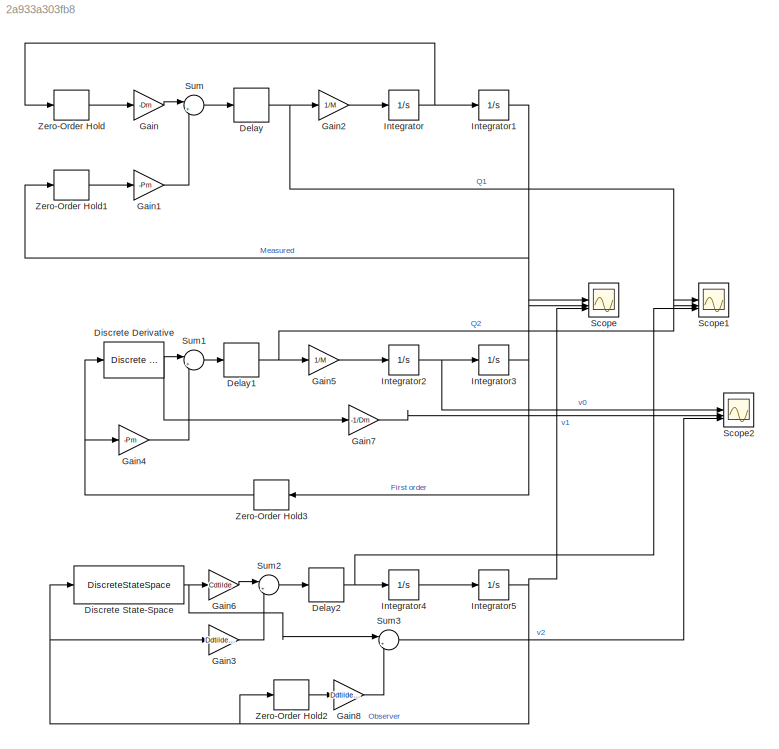
MODEL slx_2a933a303fb8
KIND model
CONFIG AbsTol = auto
CONFIG EnableMultiTasking = off
CONFIG FixedStep = auto
CONFIG MaxStep = auto
CONFIG MinStep = auto
CONFIG RelTol = 1e-3
CONFIG SampleTimeConstraint = Unconstrained
CONFIG SolverName = VariableStepAuto
CONFIG StartTime = 0.0
CONFIG StopTime = 10.0
BLOCK [Delay] Delay
  DelayLength = 1
  InitialCondition = 0
  InputPortMap = u0
  SampleTime = td
BLOCK [Delay] Delay1
  DelayLength = 1
  InitialCondition = 0
  InputPortMap = u0
  SampleTime = td
BLOCK [Delay] Delay2
  DelayLength = 1
  InitialCondition = 0
  InputPortMap = u0
  SampleTime = td
BLOCK [Reference] Discrete Derivative  REF=simulink/Discrete/Discrete Derivative
  SourceBlock = simulink/Discrete/Discrete Derivative
  SourceType = Discrete Derivative
BLOCK [DiscreteStateSpace] Discrete State-Space
  A = Adtilde
  B = Bdtildey
  D = 0
  InitialCondition = nutildei
  SampleTime = td
BLOCK [Gain] Gain
  Gain = -Dm
BLOCK [Gain] Gain1
  Gain = -Pm
BLOCK [Gain] Gain2
  Gain = 1/M
BLOCK [Gain] Gain3
  Gain = Ddtilde(2)
BLOCK [Gain] Gain4
  Gain = -Pm
BLOCK [Gain] Gain5
  Gain = 1/M
BLOCK [Gain] Gain6
  Gain = Cdtilde
BLOCK [Gain] Gain7
  Gain = -1/Dm
BLOCK [Gain] Gain8
  Gain = Ddtilde(2)
BLOCK [Integrator] Integrator
  InitialCondition = xi(2)
BLOCK [Integrator] Integrator1
  InitialCondition = xi(1)
BLOCK [Integrator] Integrator2
  InitialCondition = xi(2)
BLOCK [Integrator] Integrator3
  InitialCondition = xi(1)
BLOCK [Integrator] Integrator4
  InitialCondition = xi(2)
BLOCK [Integrator] Integrator5
  InitialCondition = xi(1)
BLOCK [Scope] Scope
  Floating = off
  NumInputPorts = 3
  ScopeSpecificationString = Simulink.scopes.TimeScopeBlockCfg('CurrentConfiguration', extmgr.ConfigurationSet(extmgr.Configuration('Core','General UI',true),extmgr.Configuration('Core','Source UI',true),extmgr.Configuration('Sources','WiredSimulink',true),extmgr.Configuration('Visuals','Time Domain',true,'SerializedDisplays',{struct('MinYLimReal','-1.30119','MaxYLimReal','1.25569','YLabelReal','','MinYLimMag','0.00000','MaxY...<+1381ch>
BLOCK [Scope] Scope1
  Floating = off
  NumInputPorts = 3
  ScopeSpecificationString = Simulink.scopes.TimeScopeBlockCfg('CurrentConfiguration', extmgr.ConfigurationSet(extmgr.Configuration('Core','General UI',true),extmgr.Configuration('Core','Source UI',true),extmgr.Configuration('Sources','WiredSimulink',true,'DataLoggingVariableName','ScopeData1'),extmgr.Configuration('Visuals','Time Domain',true,'SerializedDisplays',{struct('MinYLimReal','-28.66719','MaxYLimReal','18.00469','YL...<+1453ch>
BLOCK [Scope] Scope2
  Floating = off
  NumInputPorts = 3
  ScopeSpecificationString = Simulink.scopes.TimeScopeBlockCfg('CurrentConfiguration', extmgr.ConfigurationSet(extmgr.Configuration('Core','General UI',true),extmgr.Configuration('Core','Source UI',true),extmgr.Configuration('Sources','WiredSimulink',true,'DataLoggingVariableName','ScopeData2'),extmgr.Configuration('Visuals','Time Domain',true,'SerializedDisplays',{struct('MinYLimReal','-7.7125','MaxYLimReal','11.4125','YLabe...<+1442ch>
BLOCK [Sum] Sum
  Inputs = |++
BLOCK [Sum] Sum1
  Inputs = |++
BLOCK [Sum] Sum2
  Inputs = |++
BLOCK [Sum] Sum3
  Inputs = |+-
BLOCK [ZeroOrderHold] Zero-Order Hold
  SampleTime = td
BLOCK [ZeroOrderHold] Zero-Order Hold1
  SampleTime = td
BLOCK [ZeroOrderHold] Zero-Order Hold2
  SampleTime = td
BLOCK [ZeroOrderHold] Zero-Order Hold3
  NameLocation = top
  SampleTime = td
NET Delay1:1 -> Gain5:1, Scope1:2
NET Delay2:1 -> Integrator4:1, Scope1:3
NET Delay:1 -> Gain2:1, Scope1:1
NET Discrete Derivative:1 -> Gain7:1, Sum1:1
NET Discrete State-Space:1 -> Gain6:1, Sum3:1
LINE Gain1:1 -> Sum:2
LINE Gain2:1 -> Integrator:1
LINE Gain3:1 -> Sum2:2
LINE Gain4:1 -> Sum1:2
LINE Gain5:1 -> Integrator2:1
LINE Gain6:1 -> Sum2:1
LINE Gain7:1 -> Scope2:2
LINE Gain8:1 -> Sum3:2
LINE Gain:1 -> Sum:1
NET Integrator1:1 -> Scope:1, Zero-Order Hold1:1
NET Integrator2:1 -> Integrator3:1, Scope2:1
NET Integrator3:1 -> Scope:2, Zero-Order Hold3:1
LINE Integrator4:1 -> Integrator5:1
NET Integrator5:1 -> Discrete State-Space:1, Gain3:1, Scope:3, Zero-Order Hold2:1
NET Integrator:1 -> Integrator1:1, Zero-Order Hold:1
LINE Sum1:1 -> Delay1:1
LINE Sum2:1 -> Delay2:1
LINE Sum3:1 -> Scope2:3
LINE Sum:1 -> Delay:1
LINE Zero-Order Hold1:1 -> Gain1:1
LINE Zero-Order Hold2:1 -> Gain8:1
NET Zero-Order Hold3:1 -> Discrete Derivative:1, Gain4:1
LINE Zero-Order Hold:1 -> Gain:1
note: NET lines group one-source signal fan-out (src -> all destinations, sorted); 1:1 wires keep LINE
